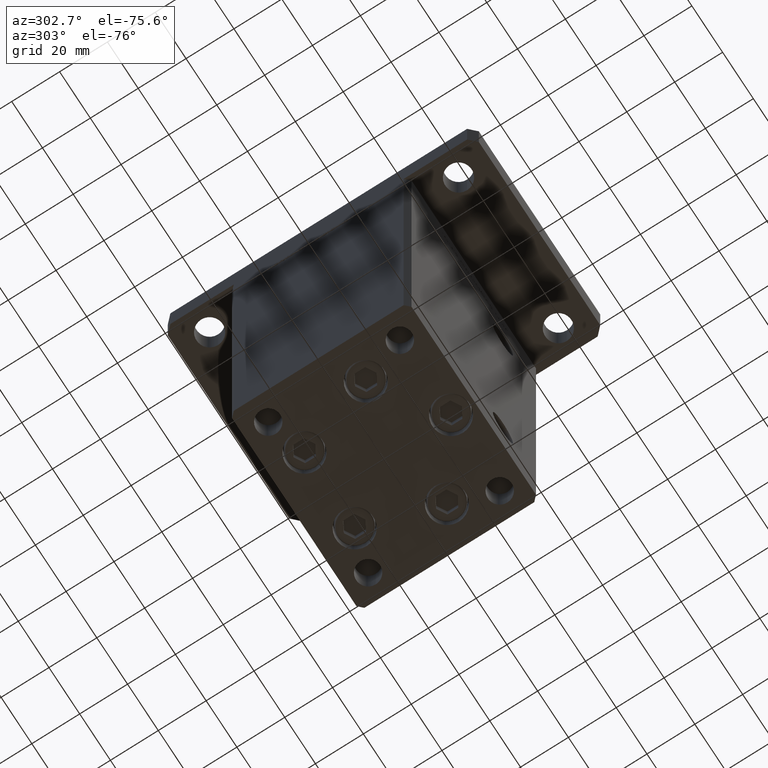
[diagram: clean part render]
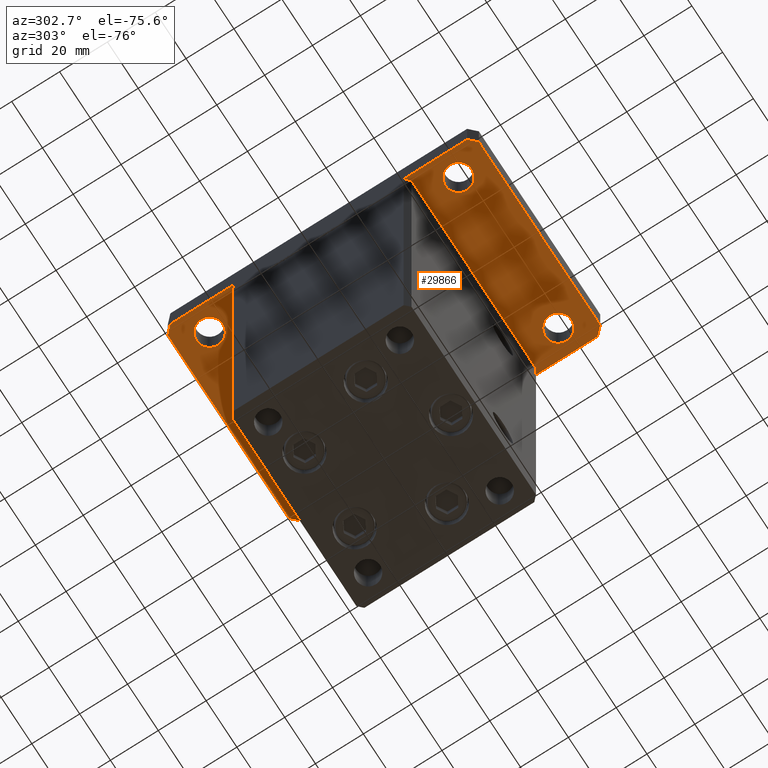
[diagram: same view with one face highlighted and labeled with its STEP entity id]
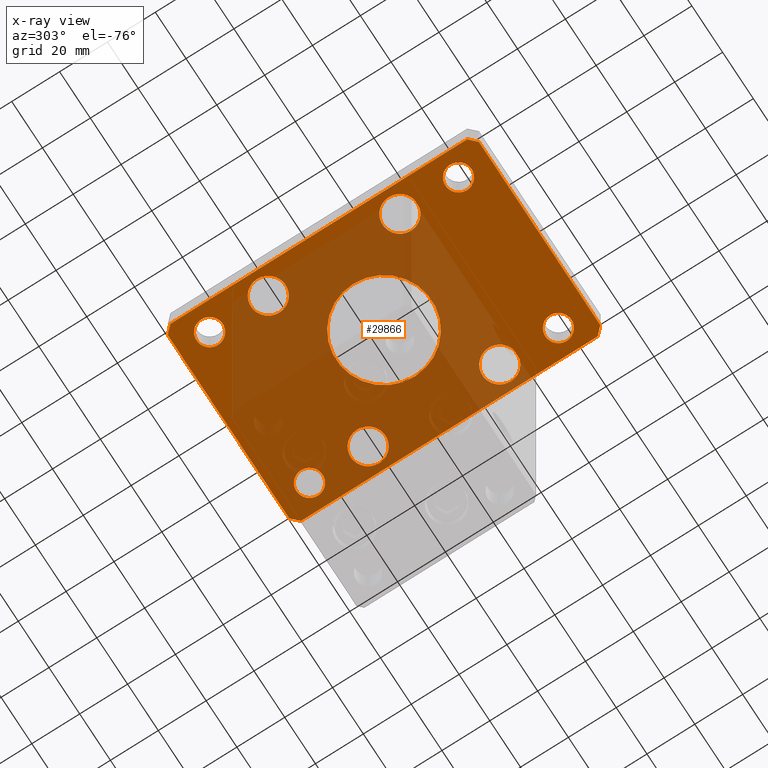
[diagram: x-ray of the same camera — body ghosted, the highlighted face saturated]
A machine part, auxiliary view. The second image highlights one B-rep face of the part: STEP entity #29866.
The next image is the same camera in x-ray: the body ghosted, the highlighted face saturated — about 61% of this face is hidden behind the body in this view.
In plain terms, the highlighted planar face has unit normal (0, 0, 1).
Its self-contained STEP definition (entity closure, byte-faithful):
#24 = CARTESIAN_POINT ( 'NONE',  ( -32.50000000000000711, 27.50000000000000000, 0.000000000000000000 ) ) ;
#37 = AXIS2_PLACEMENT_3D ( 'NONE', #24, #45576, #40975 ) ;
#199 = LINE ( 'NONE', #48514, #25975 ) ;
#266 = CARTESIAN_POINT ( 'NONE',  ( 32.49999999999997868, -52.00000000000000711, 0.000000000000000000 ) ) ;
#288 = CARTESIAN_POINT ( 'NONE',  ( -32.49999999999997868, -52.00000000000000711, 0.000000000000000000 ) ) ;
#295 = AXIS2_PLACEMENT_3D ( 'NONE', #42040, #21434, #46651 ) ;
#495 = AXIS2_PLACEMENT_3D ( 'NONE', #52285, #11319, #47932 ) ;
#831 = CARTESIAN_POINT ( 'NONE',  ( -26.99999999999998579, -52.00000000000000711, 0.000000000000000000 ) ) ;
#1818 = VERTEX_POINT ( 'NONE', #48268 ) ;
#1897 = ORIENTED_EDGE ( 'NONE', *, *, #43899, .T. ) ;
#2145 = VERTEX_POINT ( 'NONE', #3455 ) ;
#2207 = VERTEX_POINT ( 'NONE', #53614 ) ;
#2810 = FACE_BOUND ( 'NONE', #9828, .T. ) ;
#2862 = LINE ( 'NONE', #36184, #20363 ) ;
#3023 = AXIS2_PLACEMENT_3D ( 'NONE', #4905, #26028, #25757 ) ;
#3104 = CIRCLE ( 'NONE', #495, 5.499999999999994671 ) ;
#3252 = EDGE_CURVE ( 'NONE', #52770, #1818, #16875, .T. ) ;
#3279 = DIRECTION ( 'NONE',  ( 1.000000000000000000, 0.000000000000000000, 0.000000000000000000 ) ) ;
#3293 = VERTEX_POINT ( 'NONE', #831 ) ;
#3455 = CARTESIAN_POINT ( 'NONE',  ( -25.25000000000000000, -27.50000000000000000, 0.000000000000000000 ) ) ;
#3591 = VERTEX_POINT ( 'NONE', #18147 ) ;
#3606 = EDGE_LOOP ( 'NONE', ( #36970, #43750 ) ) ;
#3648 = CIRCLE ( 'NONE', #41767, 7.249999999999999112 ) ;
#3762 = VERTEX_POINT ( 'NONE', #12377 ) ;
#3814 = DIRECTION ( 'NONE',  ( 0.000000000000000000, 0.000000000000000000, 1.000000000000000000 ) ) ;
#3993 = EDGE_CURVE ( 'NONE', #3762, #28411, #2862, .T. ) ;
#4167 = CARTESIAN_POINT ( 'NONE',  ( 0.000000000000000000, 0.000000000000000000, 0.000000000000000000 ) ) ;
#4767 = DIRECTION ( 'NONE',  ( 0.000000000000000000, 0.000000000000000000, 1.000000000000000000 ) ) ;
#4905 = CARTESIAN_POINT ( 'NONE',  ( 32.50000000000000000, 51.99999999999999289, 0.000000000000000000 ) ) ;
#4926 = CARTESIAN_POINT ( 'NONE',  ( -32.50000000000000000, 52.00000000000000000, 0.000000000000000000 ) ) ;
#4948 = VERTEX_POINT ( 'NONE', #7455 ) ;
#5055 = AXIS2_PLACEMENT_3D ( 'NONE', #35799, #6255, #3279 ) ;
#5322 = CARTESIAN_POINT ( 'NONE',  ( -37.99999999999997868, -52.00000000000000711, 0.000000000000000000 ) ) ;
#5462 = DIRECTION ( 'NONE',  ( 1.000000000000000000, 0.000000000000000000, 0.000000000000000000 ) ) ;
#6114 = VERTEX_POINT ( 'NONE', #8015 ) ;
#6212 = CARTESIAN_POINT ( 'NONE',  ( 39.75000000000000000, 27.50000000000000000, 0.000000000000000000 ) ) ;
#6255 = DIRECTION ( 'NONE',  ( 0.000000000000000000, 0.000000000000000000, 1.000000000000000000 ) ) ;
#6293 = EDGE_CURVE ( 'NONE', #49898, #6934, #15844, .T. ) ;
#6542 = VERTEX_POINT ( 'NONE', #45787 ) ;
#6866 = DIRECTION ( 'NONE',  ( 1.000000000000000000, 1.405345600791337191E-15, 0.000000000000000000 ) ) ;
#6934 = VERTEX_POINT ( 'NONE', #47337 ) ;
#7393 = FACE_BOUND ( 'NONE', #47563, .T. ) ;
#7455 = CARTESIAN_POINT ( 'NONE',  ( 39.75000000000000000, -27.50000000000000000, 0.000000000000000000 ) ) ;
#7870 = DIRECTION ( 'NONE',  ( 1.000000000000000000, 0.000000000000000000, 0.000000000000000000 ) ) ;
#7953 = CARTESIAN_POINT ( 'NONE',  ( 32.50000000000000000, -27.50000000000000000, 0.000000000000000000 ) ) ;
#8015 = CARTESIAN_POINT ( 'NONE',  ( 25.25000000000000000, 27.50000000000000000, 0.000000000000000000 ) ) ;
#8135 = CARTESIAN_POINT ( 'NONE',  ( 39.50000000000002842, 65.00000000000002842, 0.000000000000000000 ) ) ;
#8734 = ORIENTED_EDGE ( 'NONE', *, *, #23501, .F. ) ;
#8741 = ORIENTED_EDGE ( 'NONE', *, *, #38229, .T. ) ;
#9023 = DIRECTION ( 'NONE',  ( -1.000000000000000000, 0.000000000000000000, 0.000000000000000000 ) ) ;
#9498 = DIRECTION ( 'NONE',  ( 0.000000000000000000, 0.000000000000000000, 1.000000000000000000 ) ) ;
#9828 = EDGE_LOOP ( 'NONE', ( #25478, #29663 ) ) ;
#10161 = EDGE_CURVE ( 'NONE', #31073, #3762, #48899, .T. ) ;
#10426 = CIRCLE ( 'NONE', #37261, 5.499999999999998224 ) ;
#10442 = EDGE_LOOP ( 'NONE', ( #17135, #47225 ) ) ;
#10461 = AXIS2_PLACEMENT_3D ( 'NONE', #15279, #11472, #11739 ) ;
#10709 = CARTESIAN_POINT ( 'NONE',  ( -39.75000000000000711, 27.50000000000000000, 0.000000000000000000 ) ) ;
#11319 = DIRECTION ( 'NONE',  ( 0.000000000000000000, 0.000000000000000000, 1.000000000000000000 ) ) ;
#11472 = DIRECTION ( 'NONE',  ( 0.000000000000000000, 0.000000000000000000, 1.000000000000000000 ) ) ;
#11625 = ORIENTED_EDGE ( 'NONE', *, *, #52716, .T. ) ;
#11739 = DIRECTION ( 'NONE',  ( 1.000000000000000000, 0.000000000000000000, -0.000000000000000000 ) ) ;
#12062 = VECTOR ( 'NONE', #35698, 1000.000000000000000 ) ;
#12377 = CARTESIAN_POINT ( 'NONE',  ( 39.50000000000001421, -64.99999999999988631, 0.000000000000000000 ) ) ;
#12869 = AXIS2_PLACEMENT_3D ( 'NONE', #46661, #9498, #13851 ) ;
#13014 = ORIENTED_EDGE ( 'NONE', *, *, #45749, .T. ) ;
#13033 = DIRECTION ( 'NONE',  ( 0.000000000000000000, 0.000000000000000000, 1.000000000000000000 ) ) ;
#13063 = DIRECTION ( 'NONE',  ( 0.000000000000000000, 0.000000000000000000, 1.000000000000000000 ) ) ;
#13285 = EDGE_CURVE ( 'NONE', #30437, #3591, #50947, .T. ) ;
#13353 = AXIS2_PLACEMENT_3D ( 'NONE', #22596, #35073, #22337 ) ;
#13580 = AXIS2_PLACEMENT_3D ( 'NONE', #7953, #20185, #31638 ) ;
#13777 = EDGE_CURVE ( 'NONE', #1818, #52770, #41444, .T. ) ;
#13851 = DIRECTION ( 'NONE',  ( 1.000000000000000000, 0.000000000000000000, 0.000000000000000000 ) ) ;
#14299 = DIRECTION ( 'NONE',  ( 0.000000000000000000, 0.000000000000000000, 1.000000000000000000 ) ) ;
#14579 = EDGE_CURVE ( 'NONE', #48766, #14829, #22347, .T. ) ;
#14757 = CARTESIAN_POINT ( 'NONE',  ( -42.50000000000002132, 62.00000000000000711, 0.000000000000000000 ) ) ;
#14829 = VERTEX_POINT ( 'NONE', #23076 ) ;
#15078 = EDGE_CURVE ( 'NONE', #48996, #2145, #27620, .T. ) ;
#15279 = CARTESIAN_POINT ( 'NONE',  ( 0.000000000000000000, 0.000000000000000000, 0.000000000000000000 ) ) ;
#15772 = DIRECTION ( 'NONE',  ( -1.000000000000000000, -3.513364001978340512E-16, 0.000000000000000000 ) ) ;
#15844 = LINE ( 'NONE', #32363, #49848 ) ;
#16238 = DIRECTION ( 'NONE',  ( 1.000000000000000000, 0.000000000000000000, 0.000000000000000000 ) ) ;
#16467 = EDGE_CURVE ( 'NONE', #37081, #4948, #34461, .T. ) ;
#16611 = VERTEX_POINT ( 'NONE', #42240 ) ;
#16705 = EDGE_CURVE ( 'NONE', #2207, #48766, #30295, .T. ) ;
#16875 = CIRCLE ( 'NONE', #3023, 5.499999999999991118 ) ;
#17135 = ORIENTED_EDGE ( 'NONE', *, *, #13777, .T. ) ;
#17474 = VECTOR ( 'NONE', #15772, 1000.000000000000000 ) ;
#17774 = EDGE_LOOP ( 'NONE', ( #34004, #53275, #31611, #52999, #30217, #27420, #8734, #37707 ) ) ;
#17799 = CARTESIAN_POINT ( 'NONE',  ( 32.50000000000000000, 27.50000000000000000, 0.000000000000000000 ) ) ;
#18085 = CIRCLE ( 'NONE', #12869, 5.499999999999994671 ) ;
#18147 = CARTESIAN_POINT ( 'NONE',  ( -38.00000000000000000, 52.00000000000000000, 0.000000000000000000 ) ) ;
#18613 = EDGE_CURVE ( 'NONE', #37147, #3293, #18085, .T. ) ;
#19296 = CIRCLE ( 'NONE', #36564, 20.00000000000000000 ) ;
#19810 = CARTESIAN_POINT ( 'NONE',  ( 25.25000000000000000, -27.50000000000000000, 0.000000000000000000 ) ) ;
#20093 = LINE ( 'NONE', #20349, #29775 ) ;
#20185 = DIRECTION ( 'NONE',  ( 0.000000000000000000, 0.000000000000000000, 1.000000000000000000 ) ) ;
#20349 = CARTESIAN_POINT ( 'NONE',  ( -42.49999999999999289, -62.00000000000001421, 0.000000000000000000 ) ) ;
#20363 = VECTOR ( 'NONE', #31860, 1000.000000000000114 ) ;
#20418 = PLANE ( 'NONE',  #10461 ) ;
#20630 = AXIS2_PLACEMENT_3D ( 'NONE', #4926, #13063, #5462 ) ;
#20745 = CARTESIAN_POINT ( 'NONE',  ( -42.50000000000002132, 62.00000000000000711, 0.000000000000000000 ) ) ;
#20836 = CIRCLE ( 'NONE', #37, 7.249999999999999112 ) ;
#21434 = DIRECTION ( 'NONE',  ( 0.000000000000000000, 0.000000000000000000, -1.000000000000000000 ) ) ;
#22126 = DIRECTION ( 'NONE',  ( 1.000000000000000000, 0.000000000000000000, 0.000000000000000000 ) ) ;
#22216 = ORIENTED_EDGE ( 'NONE', *, *, #29054, .T. ) ;
#22337 = DIRECTION ( 'NONE',  ( 1.000000000000000000, 0.000000000000000000, 0.000000000000000000 ) ) ;
#22347 = LINE ( 'NONE', #14757, #27578 ) ;
#22596 = CARTESIAN_POINT ( 'NONE',  ( -32.50000000000000711, 27.50000000000000000, 0.000000000000000000 ) ) ;
#22791 = ORIENTED_EDGE ( 'NONE', *, *, #15078, .T. ) ;
#23076 = CARTESIAN_POINT ( 'NONE',  ( -42.49999999999999289, -62.00000000000001421, 0.000000000000000000 ) ) ;
#23278 = CARTESIAN_POINT ( 'NONE',  ( -27.00000000000000711, 52.00000000000000000, 0.000000000000000000 ) ) ;
#23501 = EDGE_CURVE ( 'NONE', #28411, #49898, #199, .T. ) ;
#24092 = EDGE_CURVE ( 'NONE', #46051, #6542, #10426, .T. ) ;
#25024 = DIRECTION ( 'NONE',  ( 0.000000000000000000, 0.000000000000000000, -1.000000000000000000 ) ) ;
#25104 = VERTEX_POINT ( 'NONE', #10709 ) ;
#25478 = ORIENTED_EDGE ( 'NONE', *, *, #50689, .T. ) ;
#25731 = ORIENTED_EDGE ( 'NONE', *, *, #28204, .T. ) ;
#25757 = DIRECTION ( 'NONE',  ( 1.000000000000000000, 0.000000000000000000, 0.000000000000000000 ) ) ;
#25975 = VECTOR ( 'NONE', #40894, 1000.000000000000000 ) ;
#26028 = DIRECTION ( 'NONE',  ( 0.000000000000000000, 0.000000000000000000, 1.000000000000000000 ) ) ;
#27379 = AXIS2_PLACEMENT_3D ( 'NONE', #48712, #48451, #40031 ) ;
#27420 = ORIENTED_EDGE ( 'NONE', *, *, #6293, .F. ) ;
#27578 = VECTOR ( 'NONE', #30479, 1000.000000000000000 ) ;
#27620 = CIRCLE ( 'NONE', #50117, 7.249999999999999112 ) ;
#27695 = ORIENTED_EDGE ( 'NONE', *, *, #16467, .T. ) ;
#28204 = EDGE_CURVE ( 'NONE', #25104, #35029, #20836, .T. ) ;
#28411 = VERTEX_POINT ( 'NONE', #31708 ) ;
#28864 = EDGE_LOOP ( 'NONE', ( #33358, #1897 ) ) ;
#28916 = AXIS2_PLACEMENT_3D ( 'NONE', #17799, #4767, #46534 ) ;
#29054 = EDGE_CURVE ( 'NONE', #3293, #37147, #39870, .T. ) ;
#29663 = ORIENTED_EDGE ( 'NONE', *, *, #24092, .T. ) ;
#29775 = VECTOR ( 'NONE', #36596, 1000.000000000000000 ) ;
#29807 = AXIS2_PLACEMENT_3D ( 'NONE', #48655, #40233, #52742 ) ;
#29866 = ADVANCED_FACE ( 'NONE', ( #39949, #35868, #32867, #49160, #44558, #49423, #7393, #32076, #52982, #2810 ), #20418, .F. ) ;
#30217 = ORIENTED_EDGE ( 'NONE', *, *, #31865, .F. ) ;
#30295 = LINE ( 'NONE', #47117, #12062 ) ;
#30437 = VERTEX_POINT ( 'NONE', #23278 ) ;
#30479 = DIRECTION ( 'NONE',  ( 2.238352872228137677E-16, -1.000000000000000000, 0.000000000000000000 ) ) ;
#30604 = CIRCLE ( 'NONE', #295, 20.00000000000000000 ) ;
#30915 = CIRCLE ( 'NONE', #13580, 7.249999999999999112 ) ;
#31073 = VERTEX_POINT ( 'NONE', #37942 ) ;
#31144 = VERTEX_POINT ( 'NONE', #6212 ) ;
#31611 = ORIENTED_EDGE ( 'NONE', *, *, #14579, .F. ) ;
#31638 = DIRECTION ( 'NONE',  ( 1.000000000000000000, 0.000000000000000000, 0.000000000000000000 ) ) ;
#31708 = CARTESIAN_POINT ( 'NONE',  ( 42.50000000000000000, -61.99999999999988631, 0.000000000000000000 ) ) ;
#31860 = DIRECTION ( 'NONE',  ( 0.7071067811865459074, 0.7071067811865491270, 0.000000000000000000 ) ) ;
#31865 = EDGE_CURVE ( 'NONE', #6934, #2207, #45309, .T. ) ;
#32052 = AXIS2_PLACEMENT_3D ( 'NONE', #288, #13033, #33629 ) ;
#32076 = FACE_BOUND ( 'NONE', #28864, .T. ) ;
#32363 = CARTESIAN_POINT ( 'NONE',  ( 42.50000000000000000, 62.00000000000000711, 0.000000000000000000 ) ) ;
#32867 = FACE_BOUND ( 'NONE', #35412, .T. ) ;
#33358 = ORIENTED_EDGE ( 'NONE', *, *, #34012, .T. ) ;
#33629 = DIRECTION ( 'NONE',  ( 1.000000000000000000, 0.000000000000000000, 0.000000000000000000 ) ) ;
#33785 = DIRECTION ( 'NONE',  ( 0.000000000000000000, 0.000000000000000000, 1.000000000000000000 ) ) ;
#33993 = CARTESIAN_POINT ( 'NONE',  ( -39.75000000000000000, -27.50000000000000000, 0.000000000000000000 ) ) ;
#34004 = ORIENTED_EDGE ( 'NONE', *, *, #10161, .F. ) ;
#34012 = EDGE_CURVE ( 'NONE', #6114, #31144, #3648, .T. ) ;
#34461 = CIRCLE ( 'NONE', #38931, 7.249999999999999112 ) ;
#34522 = ORIENTED_EDGE ( 'NONE', *, *, #13285, .T. ) ;
#35029 = VERTEX_POINT ( 'NONE', #49324 ) ;
#35073 = DIRECTION ( 'NONE',  ( 0.000000000000000000, 0.000000000000000000, 1.000000000000000000 ) ) ;
#35412 = EDGE_LOOP ( 'NONE', ( #37467, #22216 ) ) ;
#35509 = EDGE_CURVE ( 'NONE', #46751, #16611, #19296, .T. ) ;
#35686 = DIRECTION ( 'NONE',  ( 1.000000000000000000, 0.000000000000000000, 0.000000000000000000 ) ) ;
#35698 = DIRECTION ( 'NONE',  ( -0.7071067811865466846, -0.7071067811865483499, 0.000000000000000000 ) ) ;
#35799 = CARTESIAN_POINT ( 'NONE',  ( 32.50000000000000000, 51.99999999999999289, 0.000000000000000000 ) ) ;
#35868 = FACE_OUTER_BOUND ( 'NONE', #17774, .T. ) ;
#35870 = CARTESIAN_POINT ( 'NONE',  ( -39.50000000000000000, -65.00000000000000000, 0.000000000000000000 ) ) ;
#36184 = CARTESIAN_POINT ( 'NONE',  ( 39.50000000000001421, -64.99999999999988631, 0.000000000000000000 ) ) ;
#36295 = DIRECTION ( 'NONE',  ( 0.000000000000000000, 0.000000000000000000, 1.000000000000000000 ) ) ;
#36564 = AXIS2_PLACEMENT_3D ( 'NONE', #4167, #25024, #9023 ) ;
#36596 = DIRECTION ( 'NONE',  ( 0.7071067811865483499, -0.7071067811865466846, 0.000000000000000000 ) ) ;
#36713 = CIRCLE ( 'NONE', #13353, 7.249999999999999112 ) ;
#36970 = ORIENTED_EDGE ( 'NONE', *, *, #35509, .F. ) ;
#37081 = VERTEX_POINT ( 'NONE', #19810 ) ;
#37147 = VERTEX_POINT ( 'NONE', #5322 ) ;
#37261 = AXIS2_PLACEMENT_3D ( 'NONE', #266, #3814, #7870 ) ;
#37467 = ORIENTED_EDGE ( 'NONE', *, *, #18613, .T. ) ;
#37680 = EDGE_CURVE ( 'NONE', #16611, #46751, #30604, .T. ) ;
#37707 = ORIENTED_EDGE ( 'NONE', *, *, #3993, .F. ) ;
#37712 = CIRCLE ( 'NONE', #28916, 7.249999999999999112 ) ;
#37942 = CARTESIAN_POINT ( 'NONE',  ( -39.50000000000000000, -65.00000000000000000, 0.000000000000000000 ) ) ;
#38229 = EDGE_CURVE ( 'NONE', #35029, #25104, #36713, .T. ) ;
#38301 = CARTESIAN_POINT ( 'NONE',  ( -20.00000000000000000, 0.000000000000000000, 0.000000000000000000 ) ) ;
#38585 = EDGE_LOOP ( 'NONE', ( #25731, #8741 ) ) ;
#38675 = EDGE_CURVE ( 'NONE', #14829, #31073, #20093, .T. ) ;
#38931 = AXIS2_PLACEMENT_3D ( 'NONE', #41167, #36295, #16238 ) ;
#39640 = CARTESIAN_POINT ( 'NONE',  ( 37.99999999999997868, -52.00000000000000711, 0.000000000000000000 ) ) ;
#39870 = CIRCLE ( 'NONE', #32052, 5.499999999999994671 ) ;
#39949 = FACE_BOUND ( 'NONE', #3606, .T. ) ;
#39970 = EDGE_LOOP ( 'NONE', ( #22791, #13014 ) ) ;
#40031 = DIRECTION ( 'NONE',  ( 1.000000000000000000, 0.000000000000000000, 0.000000000000000000 ) ) ;
#40233 = DIRECTION ( 'NONE',  ( 0.000000000000000000, 0.000000000000000000, 1.000000000000000000 ) ) ;
#40828 = EDGE_LOOP ( 'NONE', ( #47784, #34522 ) ) ;
#40894 = DIRECTION ( 'NONE',  ( 0.000000000000000000, 1.000000000000000000, 0.000000000000000000 ) ) ;
#40975 = DIRECTION ( 'NONE',  ( 1.000000000000000000, 0.000000000000000000, 0.000000000000000000 ) ) ;
#41097 = CIRCLE ( 'NONE', #29807, 7.249999999999999112 ) ;
#41167 = CARTESIAN_POINT ( 'NONE',  ( 32.50000000000000000, -27.50000000000000000, 0.000000000000000000 ) ) ;
#41444 = CIRCLE ( 'NONE', #5055, 5.499999999999991118 ) ;
#41767 = AXIS2_PLACEMENT_3D ( 'NONE', #43290, #33785, #22126 ) ;
#42040 = CARTESIAN_POINT ( 'NONE',  ( 0.000000000000000000, 0.000000000000000000, 0.000000000000000000 ) ) ;
#42148 = CIRCLE ( 'NONE', #27379, 5.499999999999998224 ) ;
#42240 = CARTESIAN_POINT ( 'NONE',  ( 20.00000000000000000, 2.449293598294706513E-15, 0.000000000000000000 ) ) ;
#43051 = VECTOR ( 'NONE', #6866, 1000.000000000000000 ) ;
#43290 = CARTESIAN_POINT ( 'NONE',  ( 32.50000000000000000, 27.50000000000000000, 0.000000000000000000 ) ) ;
#43576 = CARTESIAN_POINT ( 'NONE',  ( -32.50000000000000000, -27.50000000000000000, 0.000000000000000000 ) ) ;
#43750 = ORIENTED_EDGE ( 'NONE', *, *, #37680, .F. ) ;
#43797 = EDGE_CURVE ( 'NONE', #3591, #30437, #3104, .T. ) ;
#43899 = EDGE_CURVE ( 'NONE', #31144, #6114, #37712, .T. ) ;
#44558 = FACE_BOUND ( 'NONE', #40828, .T. ) ;
#45309 = LINE ( 'NONE', #8135, #17474 ) ;
#45576 = DIRECTION ( 'NONE',  ( 0.000000000000000000, 0.000000000000000000, 1.000000000000000000 ) ) ;
#45749 = EDGE_CURVE ( 'NONE', #2145, #48996, #41097, .T. ) ;
#45787 = CARTESIAN_POINT ( 'NONE',  ( 26.99999999999998579, -52.00000000000000711, 0.000000000000000000 ) ) ;
#45921 = CARTESIAN_POINT ( 'NONE',  ( 37.99999999999999289, 51.99999999999999289, 0.000000000000000000 ) ) ;
#46051 = VERTEX_POINT ( 'NONE', #39640 ) ;
#46534 = DIRECTION ( 'NONE',  ( 1.000000000000000000, 0.000000000000000000, 0.000000000000000000 ) ) ;
#46651 = DIRECTION ( 'NONE',  ( -1.000000000000000000, 0.000000000000000000, 0.000000000000000000 ) ) ;
#46661 = CARTESIAN_POINT ( 'NONE',  ( -32.49999999999997868, -52.00000000000000711, 0.000000000000000000 ) ) ;
#46751 = VERTEX_POINT ( 'NONE', #38301 ) ;
#47117 = CARTESIAN_POINT ( 'NONE',  ( -39.50000000000003553, 65.00000000000000000, 0.000000000000000000 ) ) ;
#47225 = ORIENTED_EDGE ( 'NONE', *, *, #3252, .T. ) ;
#47337 = CARTESIAN_POINT ( 'NONE',  ( 39.50000000000002842, 65.00000000000002842, 0.000000000000000000 ) ) ;
#47563 = EDGE_LOOP ( 'NONE', ( #27695, #11625 ) ) ;
#47784 = ORIENTED_EDGE ( 'NONE', *, *, #43797, .T. ) ;
#47932 = DIRECTION ( 'NONE',  ( 1.000000000000000000, 0.000000000000000000, 0.000000000000000000 ) ) ;
#48268 = CARTESIAN_POINT ( 'NONE',  ( 27.00000000000001421, 51.99999999999999289, 0.000000000000000000 ) ) ;
#48451 = DIRECTION ( 'NONE',  ( 0.000000000000000000, 0.000000000000000000, 1.000000000000000000 ) ) ;
#48514 = CARTESIAN_POINT ( 'NONE',  ( 42.50000000000000000, -61.99999999999988631, 0.000000000000000000 ) ) ;
#48655 = CARTESIAN_POINT ( 'NONE',  ( -32.50000000000000000, -27.50000000000000000, 0.000000000000000000 ) ) ;
#48712 = CARTESIAN_POINT ( 'NONE',  ( 32.49999999999997868, -52.00000000000000711, 0.000000000000000000 ) ) ;
#48766 = VERTEX_POINT ( 'NONE', #20745 ) ;
#48899 = LINE ( 'NONE', #35870, #43051 ) ;
#48925 = DIRECTION ( 'NONE',  ( -0.7071067811865417996, 0.7071067811865532349, 0.000000000000000000 ) ) ;
#48996 = VERTEX_POINT ( 'NONE', #33993 ) ;
#49160 = FACE_BOUND ( 'NONE', #10442, .T. ) ;
#49324 = CARTESIAN_POINT ( 'NONE',  ( -25.25000000000000711, 27.50000000000000000, 0.000000000000000000 ) ) ;
#49423 = FACE_BOUND ( 'NONE', #39970, .T. ) ;
#49848 = VECTOR ( 'NONE', #48925, 1000.000000000000000 ) ;
#49898 = VERTEX_POINT ( 'NONE', #50558 ) ;
#50117 = AXIS2_PLACEMENT_3D ( 'NONE', #43576, #14299, #35686 ) ;
#50558 = CARTESIAN_POINT ( 'NONE',  ( 42.50000000000000000, 62.00000000000000711, 0.000000000000000000 ) ) ;
#50689 = EDGE_CURVE ( 'NONE', #6542, #46051, #42148, .T. ) ;
#50947 = CIRCLE ( 'NONE', #20630, 5.499999999999994671 ) ;
#52285 = CARTESIAN_POINT ( 'NONE',  ( -32.50000000000000000, 52.00000000000000000, 0.000000000000000000 ) ) ;
#52716 = EDGE_CURVE ( 'NONE', #4948, #37081, #30915, .T. ) ;
#52742 = DIRECTION ( 'NONE',  ( 1.000000000000000000, 0.000000000000000000, 0.000000000000000000 ) ) ;
#52770 = VERTEX_POINT ( 'NONE', #45921 ) ;
#52982 = FACE_BOUND ( 'NONE', #38585, .T. ) ;
#52999 = ORIENTED_EDGE ( 'NONE', *, *, #16705, .F. ) ;
#53275 = ORIENTED_EDGE ( 'NONE', *, *, #38675, .F. ) ;
#53614 = CARTESIAN_POINT ( 'NONE',  ( -39.50000000000003553, 65.00000000000000000, 0.000000000000000000 ) ) ;